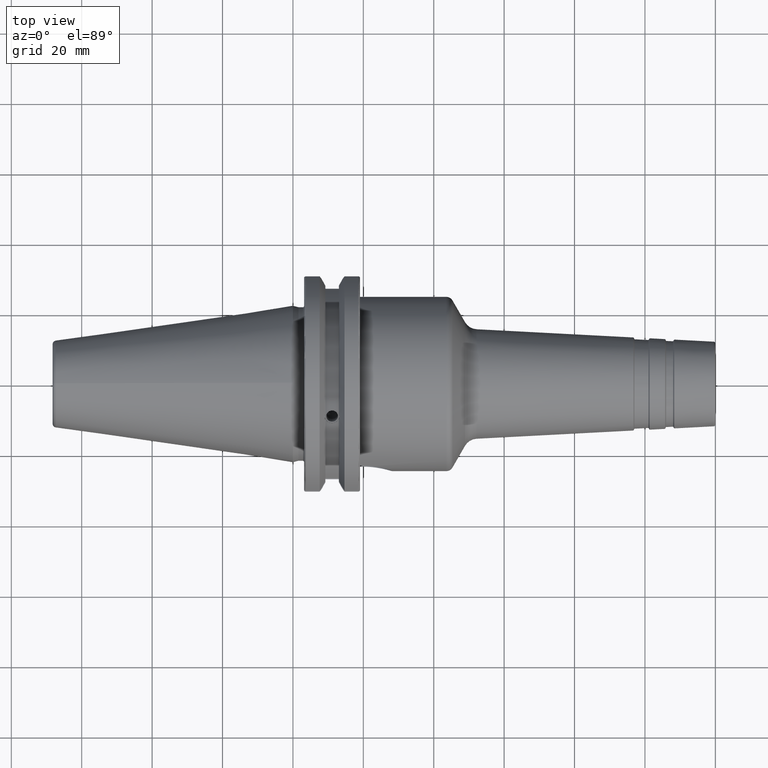
[diagram: clean part render]
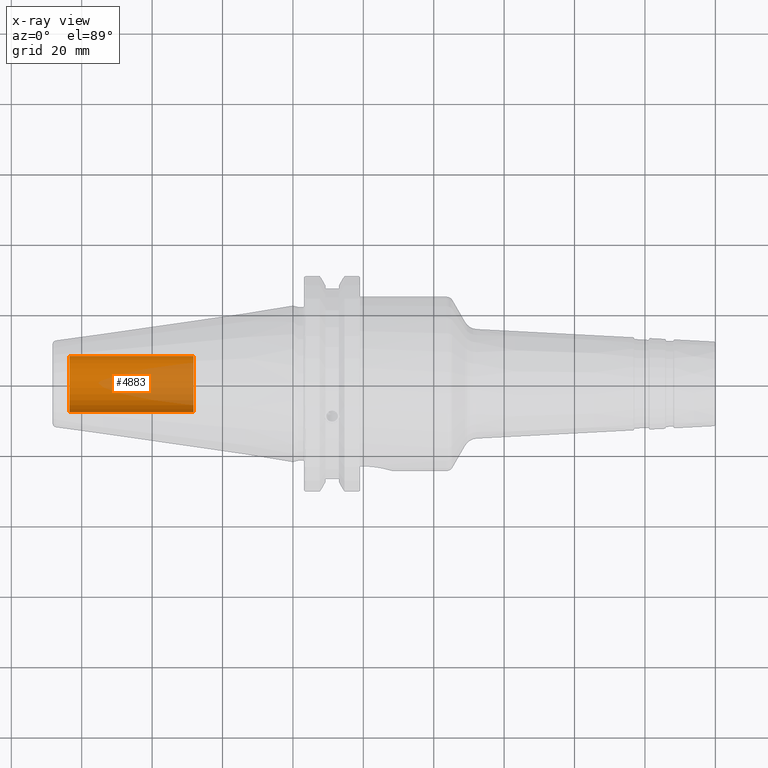
[diagram: x-ray — body ghosted, one internal face saturated and labeled with its STEP entity id]
A machine part, top view, then the same camera in x-ray: the body is ghosted and one INTERNAL B-rep face — a face not visible from any outside direction — is saturated and labeled: STEP entity #4883.
In plain terms, the highlighted cylindrical surface (edge-blend (fillet) strip) has radius 7.9375 mm, axis along (-1, 0, 0).
Its self-contained STEP definition (entity closure, byte-faithful):
#4818=CARTESIAN_POINT('',(-6.345E1,0.E0,0.E0));
#4819=DIRECTION('',(1.E0,0.E0,0.E0));
#4820=DIRECTION('',(0.E0,-1.E0,0.E0));
#4821=AXIS2_PLACEMENT_3D('',#4818,#4819,#4820);
#4828=DIRECTION('',(1.E0,0.E0,0.E0));
#4829=VECTOR('',#4828,3.52E1);
#4830=CARTESIAN_POINT('',(-6.345E1,-7.9375E0,0.E0));
#4831=LINE('',#4830,#4829);
#4832=DIRECTION('',(1.E0,0.E0,0.E0));
#4833=VECTOR('',#4832,3.52E1);
#4834=CARTESIAN_POINT('',(-6.345E1,7.9375E0,0.E0));
#4835=LINE('',#4834,#4833);
#4841=CARTESIAN_POINT('',(-2.825E1,0.E0,0.E0));
#4842=DIRECTION('',(-1.E0,0.E0,0.E0));
#4843=DIRECTION('',(0.E0,1.E0,0.E0));
#4844=AXIS2_PLACEMENT_3D('',#4841,#4842,#4843);
#4856=CARTESIAN_POINT('',(-2.825E1,7.9375E0,0.E0));
#4857=CARTESIAN_POINT('',(-2.825E1,-7.9375E0,0.E0));
#4858=VERTEX_POINT('',#4856);
#4859=VERTEX_POINT('',#4857);
#4860=CARTESIAN_POINT('',(-6.345E1,7.9375E0,0.E0));
#4861=CARTESIAN_POINT('',(-6.345E1,-7.9375E0,0.E0));
#4862=VERTEX_POINT('',#4860);
#4863=VERTEX_POINT('',#4861);
#4868=CARTESIAN_POINT('',(9.506227439634E0,0.E0,0.E0));
#4869=DIRECTION('',(-1.E0,0.E0,0.E0));
#4870=DIRECTION('',(0.E0,1.E0,0.E0));
#4871=AXIS2_PLACEMENT_3D('',#4868,#4869,#4870);
#4872=CYLINDRICAL_SURFACE('',#4871,7.9375E0);
#4874=ORIENTED_EDGE('',*,*,#4873,.T.);
#4876=ORIENTED_EDGE('',*,*,#4875,.T.);
#4878=ORIENTED_EDGE('',*,*,#4877,.T.);
#4880=ORIENTED_EDGE('',*,*,#4879,.F.);
#4881=EDGE_LOOP('',(#4874,#4876,#4878,#4880));
#4882=FACE_OUTER_BOUND('',#4881,.F.);
#4883=ADVANCED_FACE('',(#4882),#4872,.F.);
#4822=CIRCLE('',#4821,7.9375E0);
#4845=CIRCLE('',#4844,7.9375E0);
#4873=EDGE_CURVE('',#4863,#4862,#4822,.T.);
#4875=EDGE_CURVE('',#4862,#4858,#4835,.T.);
#4877=EDGE_CURVE('',#4858,#4859,#4845,.T.);
#4879=EDGE_CURVE('',#4863,#4859,#4831,.T.);